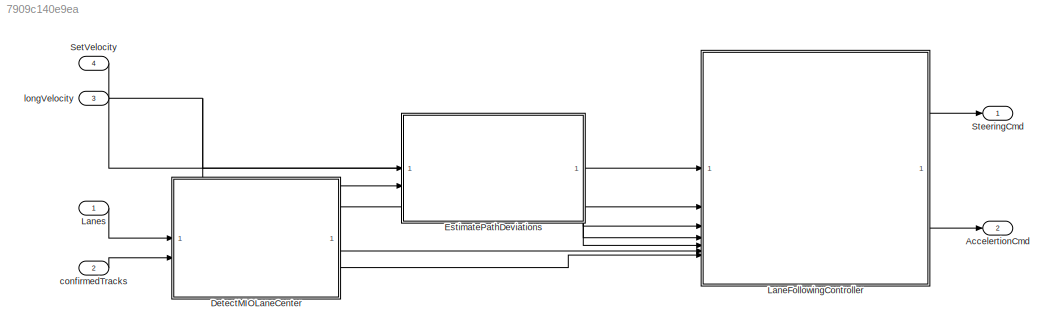
MODEL slx_7909c140e9ea
KIND model
CONFIG AbsTol = auto
CONFIG EnableMultiTasking = on
CONFIG FixedStep = auto
CONFIG MaxStep = auto
CONFIG MinStep = auto
CONFIG RelTol = 1e-3
CONFIG SampleTimeConstraint = Unconstrained
CONFIG SolverName = FixedStepDiscrete
CONFIG StartTime = 0.0
CONFIG StopTime = 10.0
BLOCK [Outport] AccelertionCmd
  OutDataTypeStr = Acceleration_DType
  Port = 2
BLOCK [ModelReference] DetectMIOLaneCenter
  ModelNameDialog = DetectMIOLaneCenter
  ModelReferenceVersion = 8.0
BLOCK [ModelReference] EstimatePathDeviations
  ModelNameDialog = PreviewCurvature
  ModelReferenceVersion = 8.0
BLOCK [ModelReference] LaneFollowingController
  ModelNameDialog = LF_Controller
  ModelReferenceVersion = 8.0
BLOCK [Inport] Lanes
  OutDataTypeStr = Bus: LaneSensor
BLOCK [Inport] SetVelocity
  OutDataTypeStr = Velocity_DType
  Port = 4
BLOCK [Outport] SteeringCmd
  OutDataTypeStr = Steering_DType
BLOCK [Inport] confirmedTracks
  BusOutputAsStruct = on
  OutDataTypeStr = Bus: BusMultiObjectTracker
  Port = 2
BLOCK [Inport] longVelocity
  OutDataTypeStr = Velocity_DType
  Port = 3
LINE DetectMIOLaneCenter:1 -> EstimatePathDeviations:2
LINE DetectMIOLaneCenter:2 -> LaneFollowingController:6
LINE DetectMIOLaneCenter:3 -> LaneFollowingController:7
LINE EstimatePathDeviations:1 -> LaneFollowingController:3
LINE EstimatePathDeviations:2 -> LaneFollowingController:4
LINE EstimatePathDeviations:3 -> LaneFollowingController:5
LINE LaneFollowingController:1 -> SteeringCmd:1
LINE LaneFollowingController:2 -> AccelertionCmd:1
LINE Lanes:1 -> DetectMIOLaneCenter:1
LINE SetVelocity:1 -> LaneFollowingController:1
LINE confirmedTracks:1 -> DetectMIOLaneCenter:2
NET longVelocity:1 -> EstimatePathDeviations:1, LaneFollowingController:2
note: NET lines group one-source signal fan-out (src -> all destinations, sorted); 1:1 wires keep LINE
